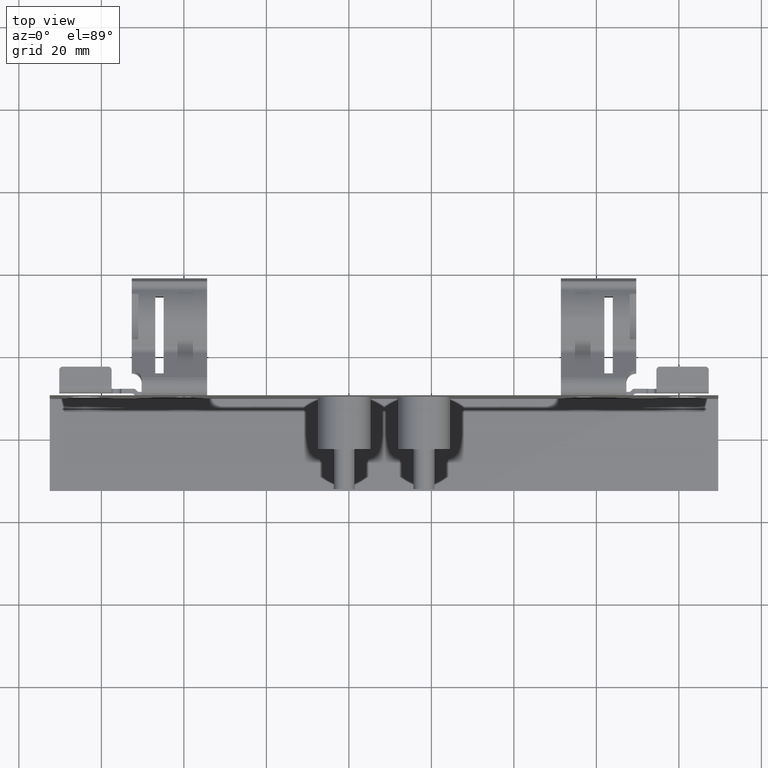
[diagram: clean part render]
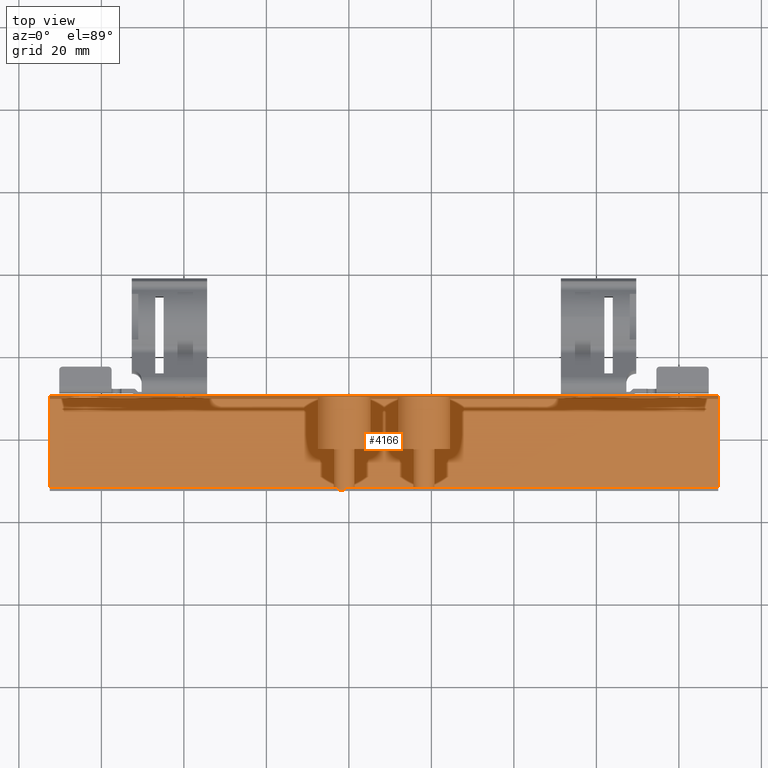
[diagram: same view with one face highlighted and labeled with its STEP entity id]
A machine part, top view. The second image highlights one B-rep face of the part: STEP entity #4166.
In plain terms, the highlighted planar face has unit normal (0, 0, 1).
Its self-contained STEP definition (entity closure, byte-faithful):
#354 = LINE ( 'NONE', #4794, #11059 ) ;
#790 = DIRECTION ( 'NONE',  ( 0.0000000000000000000, -1.000000000000000000, -0.0000000000000000000 ) ) ;
#839 = EDGE_CURVE ( 'NONE', #7217, #13440, #354, .T. ) ;
#1254 = ORIENTED_EDGE ( 'NONE', *, *, #839, .F. ) ;
#1485 = AXIS2_PLACEMENT_3D ( 'NONE', #3634, #8803, #6848 ) ;
#1868 = ORIENTED_EDGE ( 'NONE', *, *, #9744, .F. ) ;
#2538 = CARTESIAN_POINT ( 'NONE',  ( 5.100000000000000500, 0.3925000000000016300, 0.9999999999999998900 ) ) ;
#3574 = DIRECTION ( 'NONE',  ( 0.0000000000000000000, 1.000000000000000000, -0.0000000000000000000 ) ) ;
#3634 = CARTESIAN_POINT ( 'NONE',  ( 1.910000000000000400, -0.4874999999999996600, 0.9999999999999998900 ) ) ;
#4015 = FACE_OUTER_BOUND ( 'NONE', #4050, .T. ) ;
#4050 = EDGE_LOOP ( 'NONE', ( #7132, #1868, #1254, #5243 ) ) ;
#4166 = ADVANCED_FACE ( 'NONE', ( #4015 ), #8037, .F. ) ;
#4698 = CARTESIAN_POINT ( 'NONE',  ( 5.100000000000000500, -0.4874999999999991000, 0.9999999999999998900 ) ) ;
#4794 = CARTESIAN_POINT ( 'NONE',  ( -1.279999999999999800, -0.4874999999999996600, 0.9999999999999998900 ) ) ;
#5243 = ORIENTED_EDGE ( 'NONE', *, *, #10770, .F. ) ;
#5269 = VECTOR ( 'NONE', #3574, 39.37007874015748100 ) ;
#5585 = LINE ( 'NONE', #2538, #5269 ) ;
#5881 = DIRECTION ( 'NONE',  ( 1.000000000000000000, 1.836970198721029400E-016, -0.0000000000000000000 ) ) ;
#6183 = CARTESIAN_POINT ( 'NONE',  ( 5.100000000000000500, 0.3925000000000016300, 0.9999999999999998900 ) ) ;
#6337 = VERTEX_POINT ( 'NONE', #6183 ) ;
#6716 = LINE ( 'NONE', #10054, #11619 ) ;
#6848 = DIRECTION ( 'NONE',  ( 1.000000000000000000, 0.0000000000000000000, -0.0000000000000000000 ) ) ;
#7132 = ORIENTED_EDGE ( 'NONE', *, *, #12770, .F. ) ;
#7217 = VERTEX_POINT ( 'NONE', #9351 ) ;
#8037 = PLANE ( 'NONE',  #1485 ) ;
#8677 = LINE ( 'NONE', #8944, #11121 ) ;
#8803 = DIRECTION ( 'NONE',  ( 0.0000000000000000000, 0.0000000000000000000, 1.000000000000000000 ) ) ;
#8944 = CARTESIAN_POINT ( 'NONE',  ( -1.279999999999999800, -0.4874999999999996600, 0.9999999999999998900 ) ) ;
#9037 = DIRECTION ( 'NONE',  ( -1.000000000000000000, -0.0000000000000000000, 0.0000000000000000000 ) ) ;
#9351 = CARTESIAN_POINT ( 'NONE',  ( -1.279999999999999800, 0.3925000000000006800, 0.9999999999999998900 ) ) ;
#9744 = EDGE_CURVE ( 'NONE', #13440, #13341, #8677, .T. ) ;
#10054 = CARTESIAN_POINT ( 'NONE',  ( 1.910000000000000400, 0.3925000000000016300, 0.9999999999999998900 ) ) ;
#10770 = EDGE_CURVE ( 'NONE', #6337, #7217, #6716, .T. ) ;
#11059 = VECTOR ( 'NONE', #790, 39.37007874015748100 ) ;
#11121 = VECTOR ( 'NONE', #5881, 39.37007874015748100 ) ;
#11619 = VECTOR ( 'NONE', #9037, 39.37007874015748100 ) ;
#12770 = EDGE_CURVE ( 'NONE', #13341, #6337, #5585, .T. ) ;
#13147 = CARTESIAN_POINT ( 'NONE',  ( -1.279999999999999800, -0.4874999999999996600, 0.9999999999999998900 ) ) ;
#13341 = VERTEX_POINT ( 'NONE', #4698 ) ;
#13440 = VERTEX_POINT ( 'NONE', #13147 ) ;